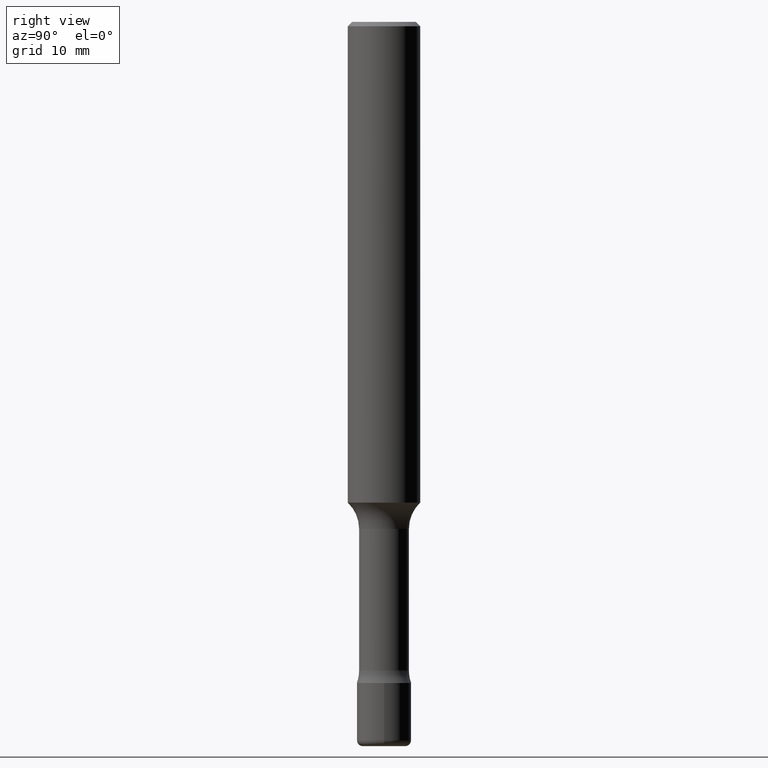
[diagram: clean part render]
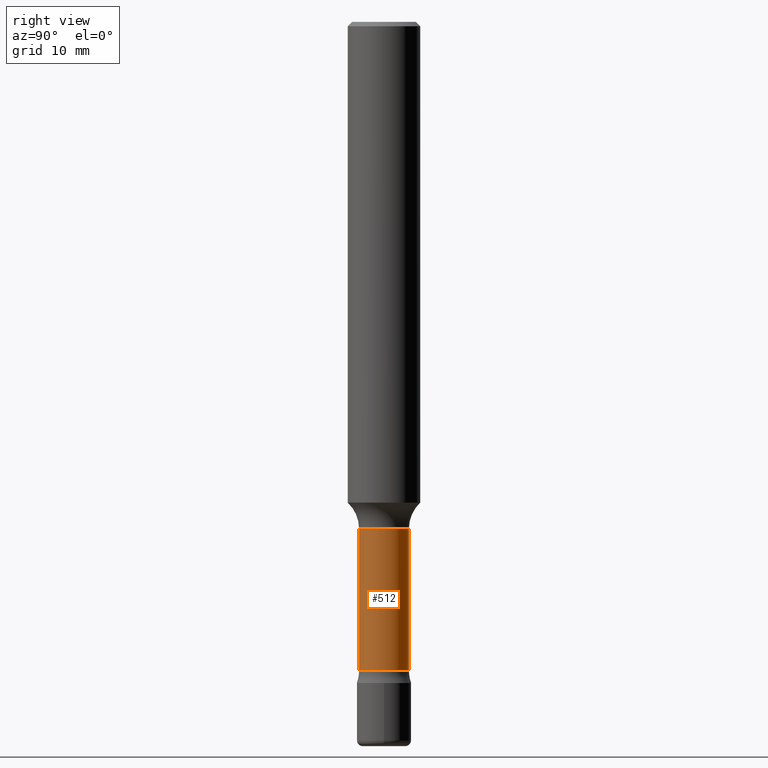
[diagram: same view with one face highlighted and labeled with its STEP entity id]
A machine part, right view. The second image highlights one B-rep face of the part: STEP entity #512.
In plain terms, the highlighted cylindrical surface (edge-blend (fillet) strip) has radius 2.1844 mm, axis along (-0, 0, 1).
Its self-contained STEP definition (entity closure, byte-faithful):
#5 = CARTESIAN_POINT ( 'NONE',  ( 7.496225862269470868E-16, 0.08599999999999387301, -1.750000000000000444 ) ) ;
#6 = CARTESIAN_POINT ( 'NONE',  ( -1.169113584055446105E-44, 1.669184350826100908E-30, 4.780733988912460139E-16 ) ) ;
#8 = LINE ( 'NONE', #167, #488 ) ;
#31 = VERTEX_POINT ( 'NONE', #54 ) ;
#54 = CARTESIAN_POINT ( 'NONE',  ( 6.110667527537350203E-16, 0.08599999999999224931, -2.238670593126608210 ) ) ;
#84 = ORIENTED_EDGE ( 'NONE', *, *, #305, .F. ) ;
#102 = CIRCLE ( 'NONE', #318, 0.08599999999999997924 ) ;
#123 = DIRECTION ( 'NONE',  ( -6.982962677686265922E-15, -1.000000000000000000, 3.176567434493326407E-15 ) ) ;
#145 = DIRECTION ( 'NONE',  ( -2.445815413942617356E-29, 3.490984976806744767E-15, 1.000000000000000000 ) ) ;
#155 = ORIENTED_EDGE ( 'NONE', *, *, #416, .T. ) ;
#159 = VECTOR ( 'NONE', #428, 39.37007874015748143 ) ;
#165 = DIRECTION ( 'NONE',  ( -2.445815413942617356E-29, 3.490984976806744767E-15, 1.000000000000000000 ) ) ;
#167 = CARTESIAN_POINT ( 'NONE',  ( 6.110667527536862095E-16, 0.08600000000000002087, 1.778486908858659326E-16 ) ) ;
#180 = CARTESIAN_POINT ( 'NONE',  ( -6.005347902809759284E-16, -0.08600000000000609934, -1.750000000000000000 ) ) ;
#190 = VERTEX_POINT ( 'NONE', #180 ) ;
#197 = CARTESIAN_POINT ( 'NONE',  ( -6.005347902809646871E-16, -0.08600000000000788958, -2.238670593126607766 ) ) ;
#208 = CYLINDRICAL_SURFACE ( 'NONE', #424, 0.08600000000000002087 ) ;
#211 = AXIS2_PLACEMENT_3D ( 'NONE', #507, #145, #123 ) ;
#249 = VERTEX_POINT ( 'NONE', #197 ) ;
#252 = FACE_OUTER_BOUND ( 'NONE', #519, .T. ) ;
#269 = LINE ( 'NONE', #425, #159 ) ;
#271 = CIRCLE ( 'NONE', #211, 0.08600000000000007638 ) ;
#273 = EDGE_CURVE ( 'NONE', #249, #31, #271, .T. ) ;
#305 = EDGE_CURVE ( 'NONE', #190, #440, #102, .T. ) ;
#318 = AXIS2_PLACEMENT_3D ( 'NONE', #393, #320, #357 ) ;
#320 = DIRECTION ( 'NONE',  ( -2.445815413942617356E-29, 3.490984976806744767E-15, 1.000000000000000000 ) ) ;
#327 = ORIENTED_EDGE ( 'NONE', *, *, #376, .F. ) ;
#333 = DIRECTION ( 'NONE',  ( -6.982962677686265922E-15, -1.000000000000000000, 3.490984976806745162E-15 ) ) ;
#335 = DIRECTION ( 'NONE',  ( -2.445815413942617636E-29, 3.490984976806744767E-15, 1.000000000000000000 ) ) ;
#357 = DIRECTION ( 'NONE',  ( -6.982962677686266711E-15, -1.000000000000000000, 3.176567434493329957E-15 ) ) ;
#376 = EDGE_CURVE ( 'NONE', #249, #190, #269, .T. ) ;
#392 = ORIENTED_EDGE ( 'NONE', *, *, #273, .T. ) ;
#393 = CARTESIAN_POINT ( 'NONE',  ( 4.280176974399580513E-29, -6.109223709411804427E-15, -1.750000000000000222 ) ) ;
#416 = EDGE_CURVE ( 'NONE', #31, #440, #8, .T. ) ;
#424 = AXIS2_PLACEMENT_3D ( 'NONE', #6, #165, #333 ) ;
#425 = CARTESIAN_POINT ( 'NONE',  ( -6.005347902810190199E-16, -0.08600000000000002087, 7.782981068966262185E-16 ) ) ;
#428 = DIRECTION ( 'NONE',  ( -2.445815413942617636E-29, 3.490984976806744767E-15, 1.000000000000000000 ) ) ;
#440 = VERTEX_POINT ( 'NONE', #5 ) ;
#488 = VECTOR ( 'NONE', #335, 39.37007874015748143 ) ;
#507 = CARTESIAN_POINT ( 'NONE',  ( 5.475375043409118426E-29, -7.815165408624032108E-15, -2.238670593126607766 ) ) ;
#512 = ADVANCED_FACE ( 'NONE', ( #252 ), #208, .T. ) ;
#519 = EDGE_LOOP ( 'NONE', ( #392, #155, #84, #327 ) ) ;